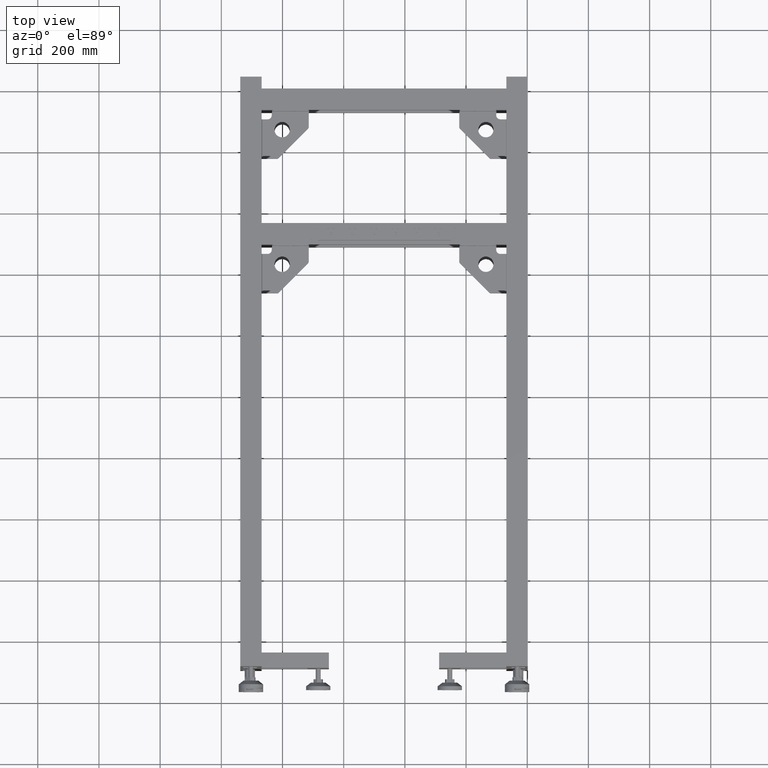
[diagram: clean part render]
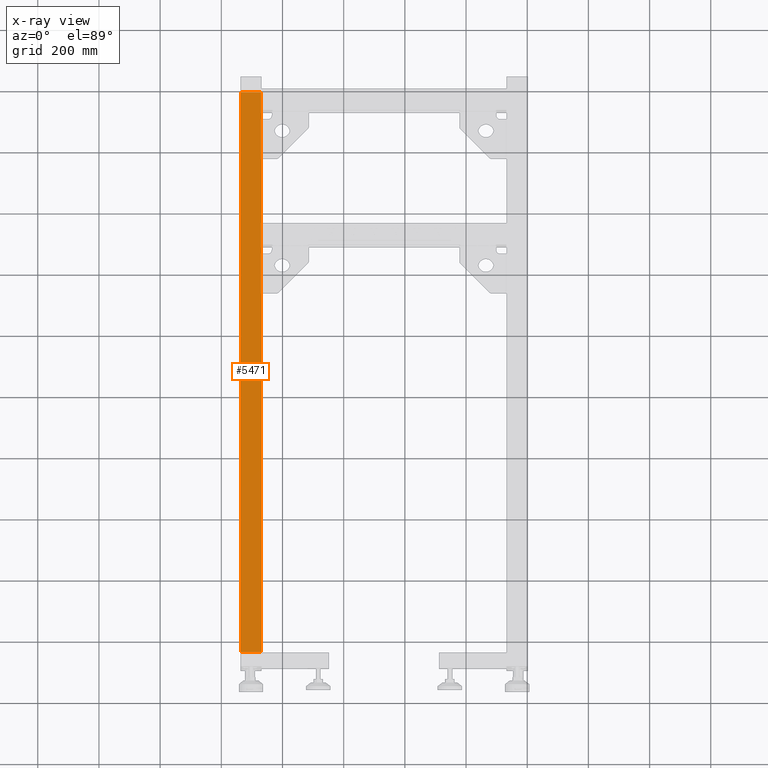
[diagram: x-ray — body ghosted, one internal face saturated and labeled with its STEP entity id]
A machine part, top view, then the same camera in x-ray: the body is ghosted and one INTERNAL B-rep face — a face not visible from any outside direction — is saturated and labeled: STEP entity #5471.
In plain terms, the highlighted planar face has unit normal (-0, 0, 1).
Its self-contained STEP definition (entity closure, byte-faithful):
#21 = CARTESIAN_POINT ( 'NONE',  ( -1336.172487437185055, 986.4410804020136538, 201.9999999999999716 ) ) ;
#3616 = VERTEX_POINT ( 'NONE', #63943 ) ;
#5471 = ADVANCED_FACE ( 'NONE', ( #47011 ), #36048, .T. ) ;
#6672 = DIRECTION ( 'NONE',  ( -1.000000000000000078E-15, -1.000000000000000000, -0.000000000000000000 ) ) ;
#10457 = EDGE_CURVE ( 'NONE', #14322, #62680, #62246, .T. ) ;
#11853 = ORIENTED_EDGE ( 'NONE', *, *, #66890, .T. ) ;
#13983 = LINE ( 'NONE', #55820, #15799 ) ;
#14322 = VERTEX_POINT ( 'NONE', #56396 ) ;
#15799 = VECTOR ( 'NONE', #60605, 1000.000000000000000 ) ;
#20503 = ORIENTED_EDGE ( 'NONE', *, *, #24107, .T. ) ;
#20756 = CARTESIAN_POINT ( 'NONE',  ( -1336.172487437185055, 986.4410804020136538, 201.9999999999999716 ) ) ;
#24107 = EDGE_CURVE ( 'NONE', #62680, #63649, #27252, .T. ) ;
#27252 = LINE ( 'NONE', #20756, #35820 ) ;
#32935 = ORIENTED_EDGE ( 'NONE', *, *, #10457, .T. ) ;
#35820 = VECTOR ( 'NONE', #6672, 1000.000000000000000 ) ;
#36048 = PLANE ( 'NONE',  #65591 ) ;
#39496 = EDGE_LOOP ( 'NONE', ( #20503, #11853, #66212, #32935 ) ) ;
#41865 = DIRECTION ( 'NONE',  ( -0.000000000000000000, 0.000000000000000000, 1.000000000000000000 ) ) ;
#42544 = DIRECTION ( 'NONE',  ( 1.000000000000000000, 0.000000000000000000, 0.000000000000000000 ) ) ;
#46902 = CARTESIAN_POINT ( 'NONE',  ( -1336.172487437185055, -844.5589195979888473, 201.9999999999999716 ) ) ;
#47011 = FACE_OUTER_BOUND ( 'NONE', #39496, .T. ) ;
#50856 = DIRECTION ( 'NONE',  ( -1.000000000000000078E-15, -1.000000000000000000, -0.000000000000000000 ) ) ;
#52633 = CARTESIAN_POINT ( 'NONE',  ( -1336.172487437185055, 986.4410804020136538, 201.9999999999999716 ) ) ;
#55820 = CARTESIAN_POINT ( 'NONE',  ( -1336.172487437185055, -844.5589195979888473, 201.9999999999999716 ) ) ;
#55998 = EDGE_CURVE ( 'NONE', #14322, #3616, #56356, .T. ) ;
#56356 = LINE ( 'NONE', #62179, #66853 ) ;
#56396 = CARTESIAN_POINT ( 'NONE',  ( -1270.172487437185055, 986.4410804020109254, 201.9999999999999716 ) ) ;
#57109 = DIRECTION ( 'NONE',  ( -1.000000000000000000, 1.682156097916908074E-15, -0.000000000000000000 ) ) ;
#60605 = DIRECTION ( 'NONE',  ( 1.000000000000000000, 0.000000000000000000, 0.000000000000000000 ) ) ;
#61494 = CARTESIAN_POINT ( 'NONE',  ( -1336.172487437185055, 986.4410804020136538, 201.9999999999999716 ) ) ;
#62179 = CARTESIAN_POINT ( 'NONE',  ( -1270.172487437185055, 986.4410804020136538, 201.9999999999999716 ) ) ;
#62246 = LINE ( 'NONE', #52633, #64095 ) ;
#62680 = VERTEX_POINT ( 'NONE', #61494 ) ;
#63649 = VERTEX_POINT ( 'NONE', #46902 ) ;
#63943 = CARTESIAN_POINT ( 'NONE',  ( -1270.172487437185055, -844.5589195979888473, 201.9999999999999716 ) ) ;
#64095 = VECTOR ( 'NONE', #57109, 1000.000000000000000 ) ;
#65591 = AXIS2_PLACEMENT_3D ( 'NONE', #21, #41865, #42544 ) ;
#66212 = ORIENTED_EDGE ( 'NONE', *, *, #55998, .F. ) ;
#66853 = VECTOR ( 'NONE', #50856, 1000.000000000000000 ) ;
#66890 = EDGE_CURVE ( 'NONE', #63649, #3616, #13983, .T. ) ;